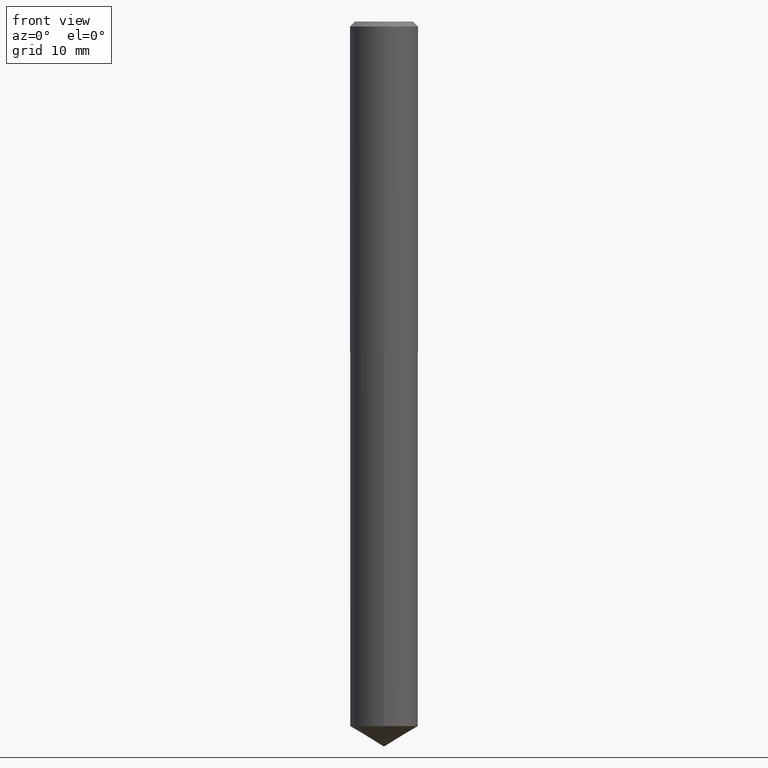
[diagram: clean part render]
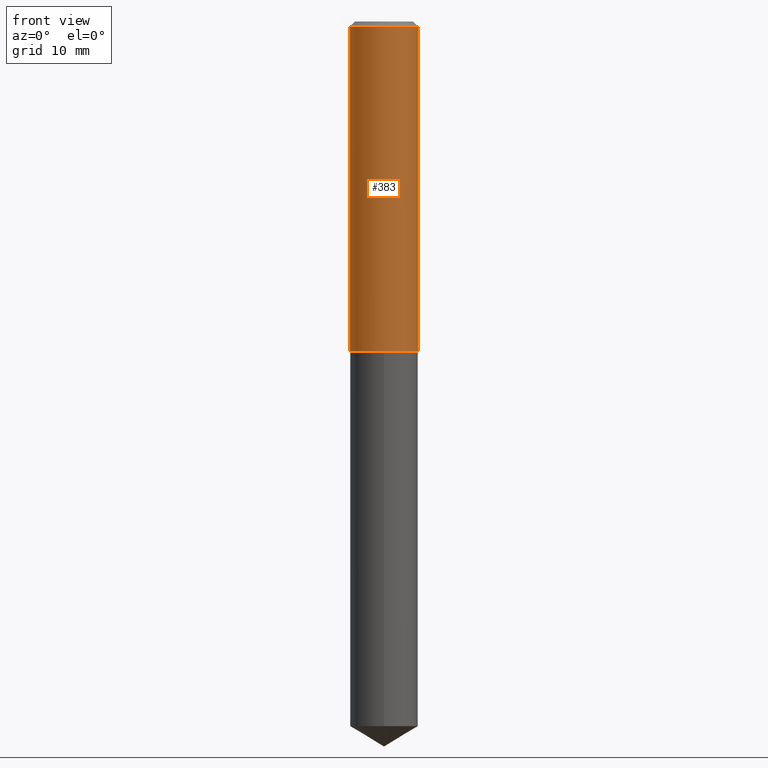
[diagram: same view with one face highlighted and labeled with its STEP entity id]
A machine part, front view. The second image highlights one B-rep face of the part: STEP entity #383.
In plain terms, the highlighted cylindrical surface (edge-blend (fillet) strip) has radius 5.3581 mm, axis along (-0, 0, 1).
Its self-contained STEP definition (entity closure, byte-faithful):
#11 = VECTOR ( 'NONE', #316, 39.37007874015748143 ) ;
#31 = AXIS2_PLACEMENT_3D ( 'NONE', #134, #286, #202 ) ;
#42 = CARTESIAN_POINT ( 'NONE',  ( -0.2109500000000001096, 1.498889901085932121E-15, -1.037649357289272942E-29 ) ) ;
#67 = CARTESIAN_POINT ( 'NONE',  ( 0.000000000000000000, 0.000000000000000000, 0.000000000000000000 ) ) ;
#76 = ORIENTED_EDGE ( 'NONE', *, *, #201, .T. ) ;
#85 = EDGE_CURVE ( 'NONE', #378, #154, #310, .T. ) ;
#110 = CARTESIAN_POINT ( 'NONE',  ( 0.2109500000000002207, -8.618023388666532939E-15, -2.046400000000000219 ) ) ;
#113 = ORIENTED_EDGE ( 'NONE', *, *, #348, .T. ) ;
#122 = CARTESIAN_POINT ( 'NONE',  ( -0.2109500000000002207, -5.646077510722680294E-15, -2.046400000000000219 ) ) ;
#128 = CARTESIAN_POINT ( 'NONE',  ( 7.642090019328600035E-31, -1.091087918388489897E-16, -0.03125000000000020123 ) ) ;
#134 = CARTESIAN_POINT ( 'NONE',  ( 5.004407364977263646E-29, -7.144967411808613796E-15, -2.046400000000000219 ) ) ;
#151 = LINE ( 'NONE', #271, #11 ) ;
#154 = VERTEX_POINT ( 'NONE', #169 ) ;
#169 = CARTESIAN_POINT ( 'NONE',  ( 0.2109499999999999986, -1.582164768696767060E-15, -0.03125000000000020123 ) ) ;
#173 = EDGE_LOOP ( 'NONE', ( #240, #113, #76, #338 ) ) ;
#184 = VERTEX_POINT ( 'NONE', #110 ) ;
#201 = EDGE_CURVE ( 'NONE', #184, #154, #151, .T. ) ;
#202 = DIRECTION ( 'NONE',  ( 1.000000000000000000, -6.982962677686269077E-15, 0.000000000000000000 ) ) ;
#203 = AXIS2_PLACEMENT_3D ( 'NONE', #128, #253, #357 ) ;
#207 = DIRECTION ( 'NONE',  ( 1.000000000000000000, -6.982962677686266711E-15, 4.876176775795935793E-29 ) ) ;
#211 = EDGE_CURVE ( 'NONE', #252, #378, #337, .T. ) ;
#236 = VECTOR ( 'NONE', #241, 39.37007874015748143 ) ;
#240 = ORIENTED_EDGE ( 'NONE', *, *, #211, .F. ) ;
#241 = DIRECTION ( 'NONE',  ( -2.445468806185136877E-29, 3.491481338843145188E-15, 1.000000000000000000 ) ) ;
#252 = VERTEX_POINT ( 'NONE', #122 ) ;
#253 = DIRECTION ( 'NONE',  ( -2.445468806185136597E-29, 3.491481338843145583E-15, 1.000000000000000000 ) ) ;
#260 = CARTESIAN_POINT ( 'NONE',  ( -0.2109499999999999986, -2.128148200737798736E-15, -0.03125000000000020123 ) ) ;
#270 = CIRCLE ( 'NONE', #31, 0.2109500000000002207 ) ;
#271 = CARTESIAN_POINT ( 'NONE',  ( 0.2109500000000001096, -1.473055976857918748E-15, 1.028629490854153189E-29 ) ) ;
#286 = DIRECTION ( 'NONE',  ( -2.445468806185136597E-29, 3.491481338843145583E-15, 1.000000000000000000 ) ) ;
#310 = CIRCLE ( 'NONE', #203, 0.2109499999999999986 ) ;
#316 = DIRECTION ( 'NONE',  ( -2.445468806185136877E-29, 3.491481338843145188E-15, 1.000000000000000000 ) ) ;
#331 = AXIS2_PLACEMENT_3D ( 'NONE', #67, #340, #207 ) ;
#337 = LINE ( 'NONE', #42, #236 ) ;
#338 = ORIENTED_EDGE ( 'NONE', *, *, #85, .F. ) ;
#340 = DIRECTION ( 'NONE',  ( -2.445468806185136597E-29, 3.491481338843145583E-15, 1.000000000000000000 ) ) ;
#348 = EDGE_CURVE ( 'NONE', #252, #184, #270, .T. ) ;
#357 = DIRECTION ( 'NONE',  ( 1.000000000000000000, -6.982962677686266711E-15, 0.000000000000000000 ) ) ;
#363 = FACE_OUTER_BOUND ( 'NONE', #173, .T. ) ;
#364 = CYLINDRICAL_SURFACE ( 'NONE', #331, 0.2109500000000001096 ) ;
#378 = VERTEX_POINT ( 'NONE', #260 ) ;
#383 = ADVANCED_FACE ( 'NONE', ( #363 ), #364, .T. ) ;